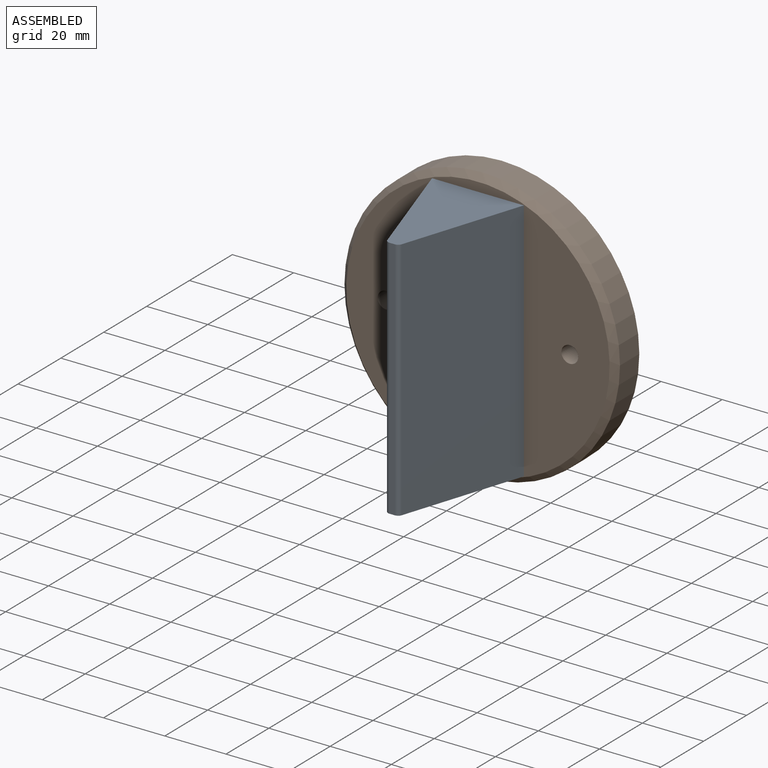
[diagram: assembled view]
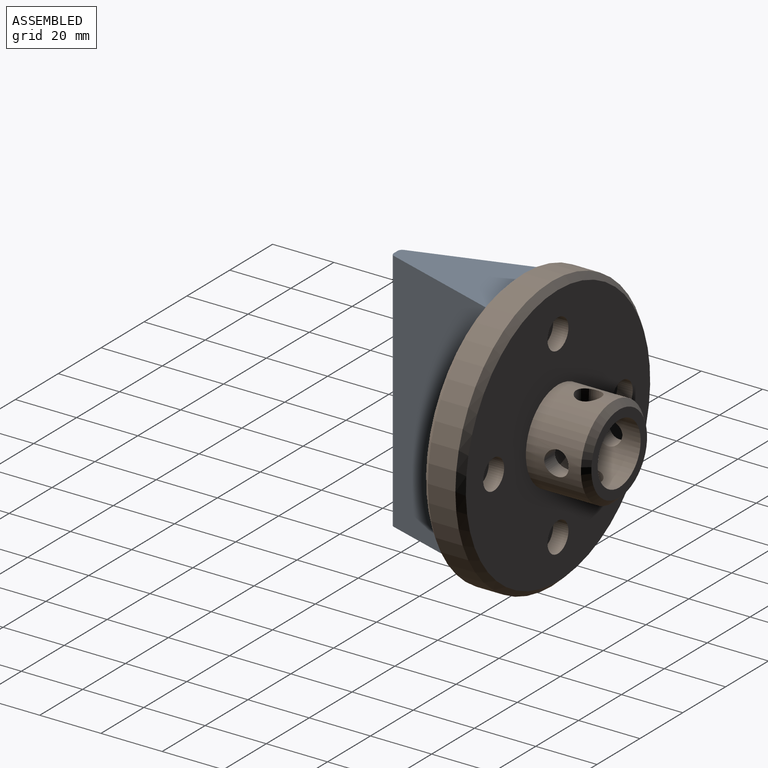
[diagram: assembled view, second angle]
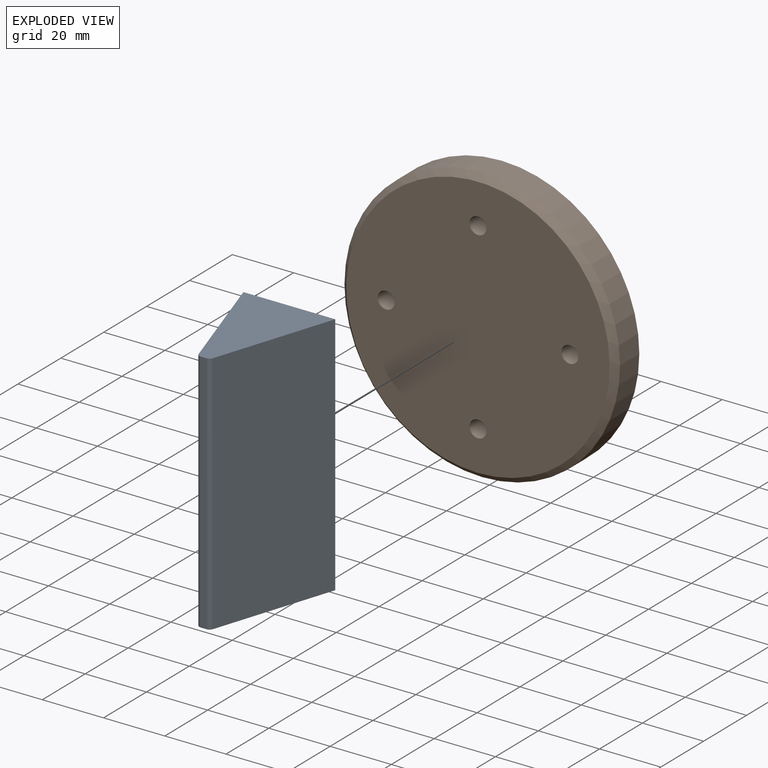
[diagram: exploded view]
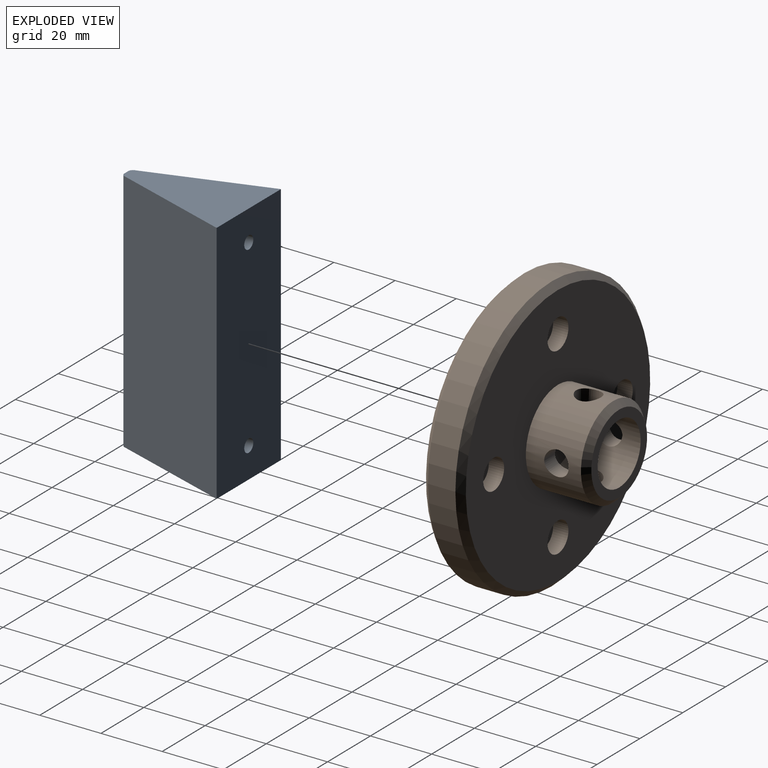
[diagram: exploded view, second angle]
ASSEMBLY  parts=2 mates=2
PART A: 12 faces, bbox 30x80x40 mm
  f0: plane 80x38.96mm, normal (0.95,0,-0.31), area 3277.6mm2, adj f1,f4,f5,f7
  f1: plane 80x30mm, normal (0,0,1), area 2372.3mm2, adj f0,f2,f4,f5,f9,f11
  f2: plane 80x38.96mm, normal (-0.95,0,-0.31), area 3277.6mm2, adj f1,f4,f5,f6
  f3: plane 80x1.82mm, normal (0,0,-1), area 145.6mm2, adj f4,f5,f6,f7
  f4: plane 40x30mm, normal (0,-1,0), area 679.6mm2, adj f0,f1,f2,f3,f6,f7
  f5: plane 40x30mm, normal (0,1,0), area 679.6mm2, adj f0,f1,f2,f3,f6,f7
  f6: cylinder r=1.5mm len=80mm, axis (0,1,0), area 150.8mm2, adj f2,f3,f4,f5
  f7: cylinder r=1.5mm len=80mm, axis (0,1,0), area 150.8mm2, adj f0,f3,f4,f5
  f8: cone r=0mm half-angle=59deg, axis (0,0,1), area 16.2mm2, adj f9
  f9: cylinder r=2.1mm len=10mm, axis (0,0,1), area 131.9mm2, adj f1,f8
  f10: cone r=0mm half-angle=59deg, axis (0,0,1), area 16.2mm2, adj f11
  f11: cylinder r=2.1mm len=10mm, axis (0,0,1), area 131.9mm2, adj f1,f10
PART B: 26 faces, bbox 90x33x90 mm
  f0: cylinder r=4mm len=8mm, axis (0,0,1), area 129.2mm2, adj f3,f4
  f1: cylinder r=4mm len=8mm, axis (-1,0,0), area 129.2mm2, adj f3,f4
  f2: cylinder r=4mm len=8mm, axis (0,0,-1), area 129.2mm2, adj f3,f4
  f3: cylinder r=15mm len=30mm, axis (0,1,0), area 1493.3mm2, adj f0,f1,f2,f16,f22,f25
  f4: cylinder r=10mm len=21mm, axis (0,1,0), area 1113.9mm2, adj f0,f1,f2,f17,f18,f22
  f5: cylinder r=2.75mm len=8mm, axis (0,1,0), area 138.2mm2, adj f6,f15
  f6: plane 9.75x9.75mm, normal (0,1,0), area 50.9mm2, adj f5,f7
  f7: cylinder r=4.88mm len=9.75mm, axis (0,1,0), area 153.2mm2, adj f6,f16
  f8: cylinder r=2.75mm len=8mm, axis (0,1,0), area 138.2mm2, adj f9,f15
  f9: plane 9.75x9.75mm, normal (0,1,0), area 50.9mm2, adj f8,f10
  f10: cylinder r=4.88mm len=9.75mm, axis (0,1,0), area 153.2mm2, adj f9,f16
  f11: cylinder r=2.75mm len=8mm, axis (0,1,0), area 138.2mm2, adj f12,f15
  f12: plane 9.75x9.75mm, normal (0,1,0), area 50.9mm2, adj f11,f13
  f13: cylinder r=4.88mm len=9.75mm, axis (0,1,0), area 153.2mm2, adj f12,f16
  f14: cylinder r=45mm len=90mm, axis (0,1,0), area 2544.7mm2, adj f23,f24
  f15: plane 86x86mm, normal (0,-1,0), area 5713.8mm2, adj f5,f8,f11,f19,f23
  f16: plane 86x86mm, normal (0,1,0), area 4803.3mm2, adj f3,f7,f10,f13,f21,f24
  f17: plane 26x26mm, normal (0,1,0), area 216.8mm2, adj f4,f25
  f18: cone r=0mm half-angle=59deg, axis (0,1,0), area 366.5mm2, adj f4
  f19: cylinder r=2.75mm len=8mm, axis (0,1,0), area 138.2mm2, adj f15,f20
  f20: plane 9.75x9.75mm, normal (0,1,0), area 50.9mm2, adj f19,f21
  f21: cylinder r=4.88mm len=9.75mm, axis (0,1,0), area 153.2mm2, adj f16,f20
  f22: cylinder r=4mm len=8mm, axis (1,0,0), area 129.2mm2, adj f3,f4
  f23: cone r=43mm half-angle=45deg, axis (0,1,0), area 781.9mm2, adj f14,f15
  f24: cone r=45mm half-angle=45deg, axis (0,-1,0), area 781.9mm2, adj f14,f16
  f25: cone r=13mm half-angle=45deg, axis (0,-1,0), area 248.8mm2, adj f3,f17
PLACE A rot(axis=(-1,0,0),90deg) t=(38.31,-22.92,-46.06)mm
PLACE B t=(38.31,-6.42,-6.06)mm
MATE planar A.f1 <-> B.f14  axis (0,1,0) through (38.31,-22.92,-6.06)mm
MATE cylindrical A.f8 <-> B.f5  axis (0,1,0) through (38.31,-22.92,-36.06)mm
